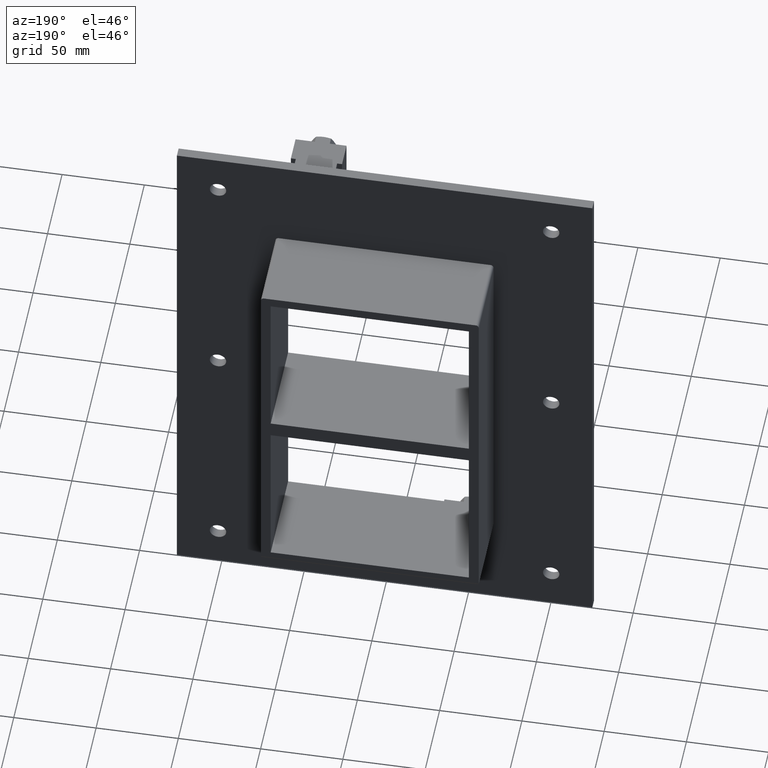
[diagram: clean part render]
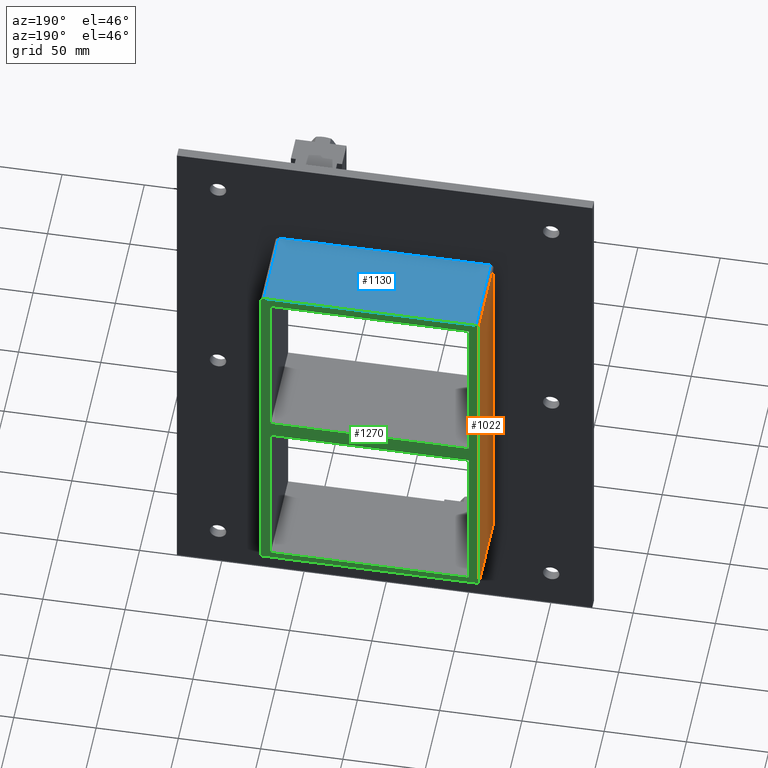
[diagram: same view with three faces highlighted in distinct colors, each labeled with its STEP entity id]
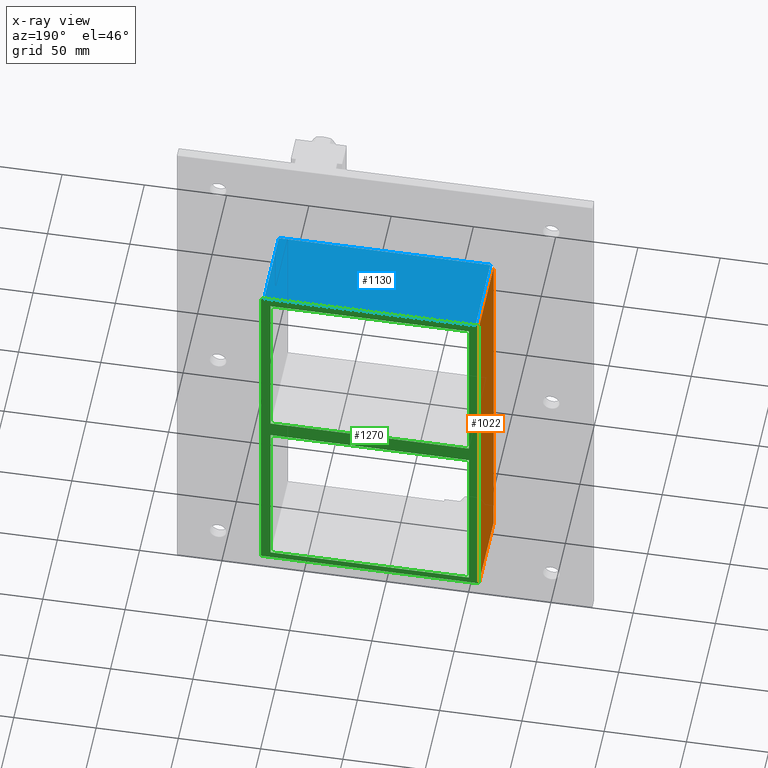
[diagram: x-ray of the same camera — body ghosted, the three highlighted faces saturated]
A machine part, auxiliary view with three faces highlighted in distinct colors.
The next image is the same camera in x-ray (body ghosted, the three faces saturated) — at least one of them is partly hidden behind the body in this view.
Their STEP definitions:

[orange] entity #1022 — the highlighted planar face has unit normal (-1, 0, 0).
#466=CARTESIAN_POINT('',(-66.25,6.000000000000001,110.00000000000003));
#467=VERTEX_POINT('',#466);
#477=CARTESIAN_POINT('',(-66.25,6.000000000000001,-110.00000000000003));
#478=VERTEX_POINT('',#477);
#479=CARTESIAN_POINT('',(-66.25,6.000000000000001,-110.00000000000003));
#480=DIRECTION('',(0.0,0.0,1.0));
#481=VECTOR('',#480,220.00000000000009);
#482=LINE('',#479,#481);
#483=EDGE_CURVE('',#478,#467,#482,.T.);
#931=CARTESIAN_POINT('',(-66.25,57.0,-110.00000000000003));
#932=VERTEX_POINT('',#931);
#933=CARTESIAN_POINT('',(-66.25,6.000000000000001,-110.00000000000003));
#934=DIRECTION('',(0.0,1.0,0.0));
#935=VECTOR('',#934,51.0);
#936=LINE('',#933,#935);
#937=EDGE_CURVE('',#478,#932,#936,.T.);
#999=CARTESIAN_POINT('',(-66.25,0.0,-112.00000000000003));
#1000=DIRECTION('',(-1.0,0.0,0.0));
#1001=DIRECTION('',(0.0,0.0,1.0));
#1002=AXIS2_PLACEMENT_3D('',#999,#1000,#1001);
#1003=PLANE('',#1002);
#1004=ORIENTED_EDGE('',*,*,#483,.T.);
#1005=CARTESIAN_POINT('',(-66.25,57.0,110.00000000000003));
#1006=VERTEX_POINT('',#1005);
#1007=CARTESIAN_POINT('',(-66.25,57.0,110.00000000000003));
#1008=DIRECTION('',(0.0,-1.0,0.0));
#1009=VECTOR('',#1008,51.0);
#1010=LINE('',#1007,#1009);
#1011=EDGE_CURVE('',#1006,#467,#1010,.T.);
#1012=ORIENTED_EDGE('',*,*,#1011,.F.);
#1013=CARTESIAN_POINT('',(-66.25,57.0,-110.00000000000003));
#1014=DIRECTION('',(0.0,0.0,1.0));
#1015=VECTOR('',#1014,220.00000000000006);
#1016=LINE('',#1013,#1015);
#1017=EDGE_CURVE('',#932,#1006,#1016,.T.);
#1018=ORIENTED_EDGE('',*,*,#1017,.F.);
#1019=ORIENTED_EDGE('',*,*,#937,.F.);
#1020=EDGE_LOOP('',(#1004,#1012,#1018,#1019));
#1021=FACE_OUTER_BOUND('',#1020,.T.);
#1022=ADVANCED_FACE('',(#1021),#1003,.T.);

[blue] entity #1130 — the highlighted planar face has unit normal (0, 0, 1).
#468=CARTESIAN_POINT('',(-64.25,6.000000000000001,112.00000000000003));
#469=VERTEX_POINT('',#468);
#519=CARTESIAN_POINT('',(64.25,6.000000000000001,112.00000000000003));
#520=VERTEX_POINT('',#519);
#528=CARTESIAN_POINT('',(-64.250000000000014,6.000000000000001,112.00000000000003));
#529=DIRECTION('',(1.0,0.0,0.0));
#530=VECTOR('',#529,128.5);
#531=LINE('',#528,#530);
#532=EDGE_CURVE('',#469,#520,#531,.T.);
#1088=CARTESIAN_POINT('',(-64.25,57.0,112.00000000000003));
#1089=VERTEX_POINT('',#1088);
#1090=CARTESIAN_POINT('',(-64.25,6.000000000000001,112.00000000000003));
#1091=DIRECTION('',(0.0,1.0,0.0));
#1092=VECTOR('',#1091,51.0);
#1093=LINE('',#1090,#1092);
#1094=EDGE_CURVE('',#469,#1089,#1093,.T.);
#1107=CARTESIAN_POINT('',(-66.25,0.0,112.00000000000003));
#1108=DIRECTION('',(0.0,0.0,1.0));
#1109=DIRECTION('',(1.0,0.0,0.0));
#1110=AXIS2_PLACEMENT_3D('',#1107,#1108,#1109);
#1111=PLANE('',#1110);
#1112=ORIENTED_EDGE('',*,*,#532,.T.);
#1113=CARTESIAN_POINT('',(64.25,57.0,112.00000000000003));
#1114=VERTEX_POINT('',#1113);
#1115=CARTESIAN_POINT('',(64.25,57.0,112.00000000000003));
#1116=DIRECTION('',(0.0,-1.0,0.0));
#1117=VECTOR('',#1116,51.0);
#1118=LINE('',#1115,#1117);
#1119=EDGE_CURVE('',#1114,#520,#1118,.T.);
#1120=ORIENTED_EDGE('',*,*,#1119,.F.);
#1121=CARTESIAN_POINT('',(-64.25,57.0,112.00000000000003));
#1122=DIRECTION('',(1.0,0.0,0.0));
#1123=VECTOR('',#1122,128.5);
#1124=LINE('',#1121,#1123);
#1125=EDGE_CURVE('',#1089,#1114,#1124,.T.);
#1126=ORIENTED_EDGE('',*,*,#1125,.F.);
#1127=ORIENTED_EDGE('',*,*,#1094,.F.);
#1128=EDGE_LOOP('',(#1112,#1120,#1126,#1127));
#1129=FACE_OUTER_BOUND('',#1128,.T.);
#1130=ADVANCED_FACE('',(#1129),#1111,.T.);

[green] entity #1270 — the highlighted planar face has unit normal (0, 1, 0).
#251=CARTESIAN_POINT('',(-60.249999999998764,57.0,-5.000000000011369));
#252=VERTEX_POINT('',#251);
#259=CARTESIAN_POINT('',(60.249999999996362,57.0,-5.000000000010996));
#260=VERTEX_POINT('',#259);
#261=CARTESIAN_POINT('',(60.249999999996362,57.0,-5.000000000010996));
#262=DIRECTION('',(-1.0,0.0,0.0));
#263=VECTOR('',#262,120.49999999999513);
#264=LINE('',#261,#263);
#265=EDGE_CURVE('',#260,#252,#264,.T.);
#291=CARTESIAN_POINT('',(60.249999999999574,57.0,5.0));
#292=VERTEX_POINT('',#291);
#299=CARTESIAN_POINT('',(-60.249999999998764,57.0,5.0));
#300=VERTEX_POINT('',#299);
#301=CARTESIAN_POINT('',(-60.249999999998764,57.0,5.0));
#302=DIRECTION('',(1.0,0.0,0.0));
#303=VECTOR('',#302,120.49999999999834);
#304=LINE('',#301,#303);
#305=EDGE_CURVE('',#300,#292,#304,.T.);
#322=CARTESIAN_POINT('',(-60.249999999999993,57.0,106.00000000000001));
#323=VERTEX_POINT('',#322);
#324=CARTESIAN_POINT('',(-60.249999999999993,57.0,106.00000000000003));
#325=DIRECTION('',(0.0,0.0,-1.0));
#326=VECTOR('',#325,101.00000000000003);
#327=LINE('',#324,#326);
#328=EDGE_CURVE('',#323,#300,#327,.T.);
#353=CARTESIAN_POINT('',(60.249999999999993,57.0,-106.00000000000001));
#354=VERTEX_POINT('',#353);
#355=CARTESIAN_POINT('',(60.249999999999993,57.0,-106.00000000000003));
#356=DIRECTION('',(0.0,0.0,1.0));
#357=VECTOR('',#356,100.99999999998903);
#358=LINE('',#355,#357);
#359=EDGE_CURVE('',#354,#260,#358,.T.);
#392=CARTESIAN_POINT('',(60.249999999999993,57.0,106.00000000000001));
#393=VERTEX_POINT('',#392);
#400=CARTESIAN_POINT('',(60.249999999999993,57.0,5.0));
#401=DIRECTION('',(0.0,0.0,1.0));
#402=VECTOR('',#401,101.00000000000001);
#403=LINE('',#400,#402);
#404=EDGE_CURVE('',#292,#393,#403,.T.);
#747=CARTESIAN_POINT('',(-60.249999999999993,57.0,-106.00000000000001));
#748=VERTEX_POINT('',#747);
#755=CARTESIAN_POINT('',(-60.249999999999993,57.0,-5.000000000011369));
#756=DIRECTION('',(0.0,0.0,-1.0));
#757=VECTOR('',#756,100.99999999998865);
#758=LINE('',#755,#757);
#759=EDGE_CURVE('',#252,#748,#758,.T.);
#858=CARTESIAN_POINT('',(66.25,57.0,-110.00000000000003));
#859=VERTEX_POINT('',#858);
#931=CARTESIAN_POINT('',(-66.25,57.0,-110.00000000000003));
#932=VERTEX_POINT('',#931);
#1005=CARTESIAN_POINT('',(-66.25,57.0,110.00000000000003));
#1006=VERTEX_POINT('',#1005);
#1013=CARTESIAN_POINT('',(-66.25,57.0,-110.00000000000003));
#1014=DIRECTION('',(0.0,0.0,1.0));
#1015=VECTOR('',#1014,220.00000000000006);
#1016=LINE('',#1013,#1015);
#1017=EDGE_CURVE('',#932,#1006,#1016,.T.);
#1070=CARTESIAN_POINT('',(-66.25,57.0,-110.00000000000003));
#1071=DIRECTION('',(1.0,0.0,0.0));
#1072=VECTOR('',#1071,132.5);
#1073=LINE('',#1070,#1072);
#1074=EDGE_CURVE('',#932,#859,#1073,.T.);
#1088=CARTESIAN_POINT('',(-64.25,57.0,112.00000000000003));
#1089=VERTEX_POINT('',#1088);
#1096=CARTESIAN_POINT('',(-64.25,57.0,110.00000000000003));
#1097=DIRECTION('',(0.0,-1.0,0.0));
#1098=DIRECTION('',(-0.707106781186548,0.0,0.707106781186548));
#1099=AXIS2_PLACEMENT_3D('',#1096,#1097,#1098);
#1100=CIRCLE('',#1099,2.0);
#1101=EDGE_CURVE('',#1089,#1006,#1100,.T.);
#1113=CARTESIAN_POINT('',(64.25,57.0,112.00000000000003));
#1114=VERTEX_POINT('',#1113);
#1121=CARTESIAN_POINT('',(-64.25,57.0,112.00000000000003));
#1122=DIRECTION('',(1.0,0.0,0.0));
#1123=VECTOR('',#1122,128.5);
#1124=LINE('',#1121,#1123);
#1125=EDGE_CURVE('',#1089,#1114,#1124,.T.);
#1175=CARTESIAN_POINT('',(66.25,57.0,110.00000000000003));
#1176=VERTEX_POINT('',#1175);
#1183=CARTESIAN_POINT('',(64.25,57.0,110.00000000000003));
#1184=DIRECTION('',(0.0,-1.0,0.0));
#1185=DIRECTION('',(0.707106781186548,0.0,0.707106781186548));
#1186=AXIS2_PLACEMENT_3D('',#1183,#1184,#1185);
#1187=CIRCLE('',#1186,2.0);
#1188=EDGE_CURVE('',#1176,#1114,#1187,.T.);
#1201=CARTESIAN_POINT('',(66.25,57.0,110.00000000000003));
#1202=DIRECTION('',(0.0,0.0,-1.0));
#1203=VECTOR('',#1202,220.00000000000006);
#1204=LINE('',#1201,#1203);
#1205=EDGE_CURVE('',#1176,#859,#1204,.T.);
#1217=CARTESIAN_POINT('',(60.25,57.0,106.00000000000001));
#1218=DIRECTION('',(-1.0,0.0,0.0));
#1219=VECTOR('',#1218,120.5);
#1220=LINE('',#1217,#1219);
#1221=EDGE_CURVE('',#393,#323,#1220,.T.);
#1236=CARTESIAN_POINT('',(-60.25,57.0,-106.00000000000001));
#1237=DIRECTION('',(1.0,0.0,0.0));
#1238=VECTOR('',#1237,120.5);
#1239=LINE('',#1236,#1238);
#1240=EDGE_CURVE('',#748,#354,#1239,.T.);
#1245=CARTESIAN_POINT('',(0.0,57.0,0.0));
#1246=DIRECTION('',(0.0,1.0,0.0));
#1247=DIRECTION('',(0.0,0.0,1.0));
#1248=AXIS2_PLACEMENT_3D('',#1245,#1246,#1247);
#1249=PLANE('',#1248);
#1250=ORIENTED_EDGE('',*,*,#1074,.F.);
#1251=ORIENTED_EDGE('',*,*,#1017,.T.);
#1252=ORIENTED_EDGE('',*,*,#1101,.F.);
#1253=ORIENTED_EDGE('',*,*,#1125,.T.);
#1254=ORIENTED_EDGE('',*,*,#1188,.F.);
#1255=ORIENTED_EDGE('',*,*,#1205,.T.);
#1256=EDGE_LOOP('',(#1250,#1251,#1252,#1253,#1254,#1255));
#1257=FACE_OUTER_BOUND('',#1256,.T.);
#1258=ORIENTED_EDGE('',*,*,#759,.T.);
#1259=ORIENTED_EDGE('',*,*,#1240,.T.);
#1260=ORIENTED_EDGE('',*,*,#359,.T.);
#1261=ORIENTED_EDGE('',*,*,#265,.T.);
#1262=EDGE_LOOP('',(#1258,#1259,#1260,#1261));
#1263=FACE_BOUND('',#1262,.T.);
#1264=ORIENTED_EDGE('',*,*,#305,.T.);
#1265=ORIENTED_EDGE('',*,*,#404,.T.);
#1266=ORIENTED_EDGE('',*,*,#1221,.T.);
#1267=ORIENTED_EDGE('',*,*,#328,.T.);
#1268=EDGE_LOOP('',(#1264,#1265,#1266,#1267));
#1269=FACE_BOUND('',#1268,.T.);
#1270=ADVANCED_FACE('',(#1257,#1263,#1269),#1249,.T.);